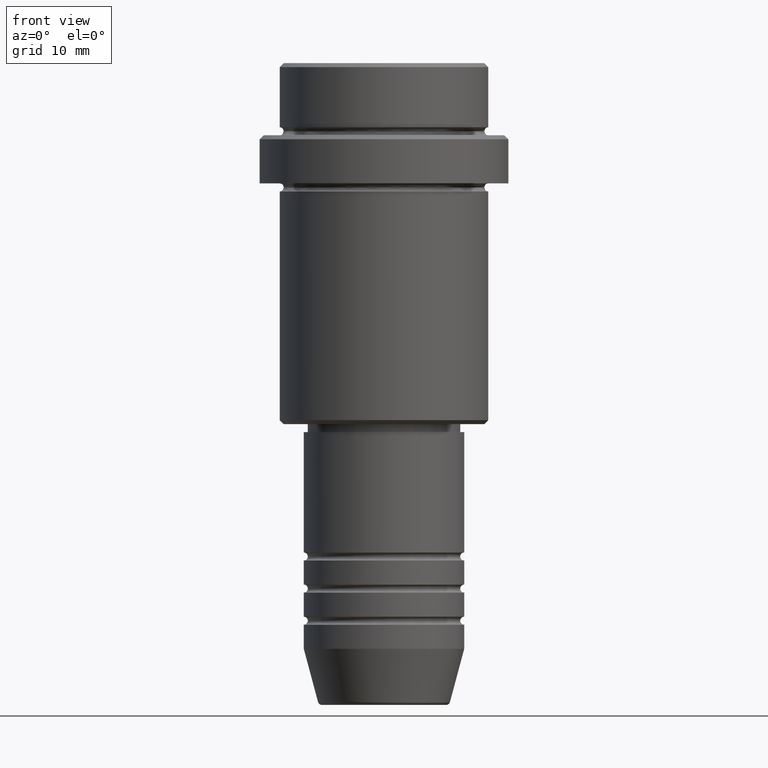
[diagram: clean part render]
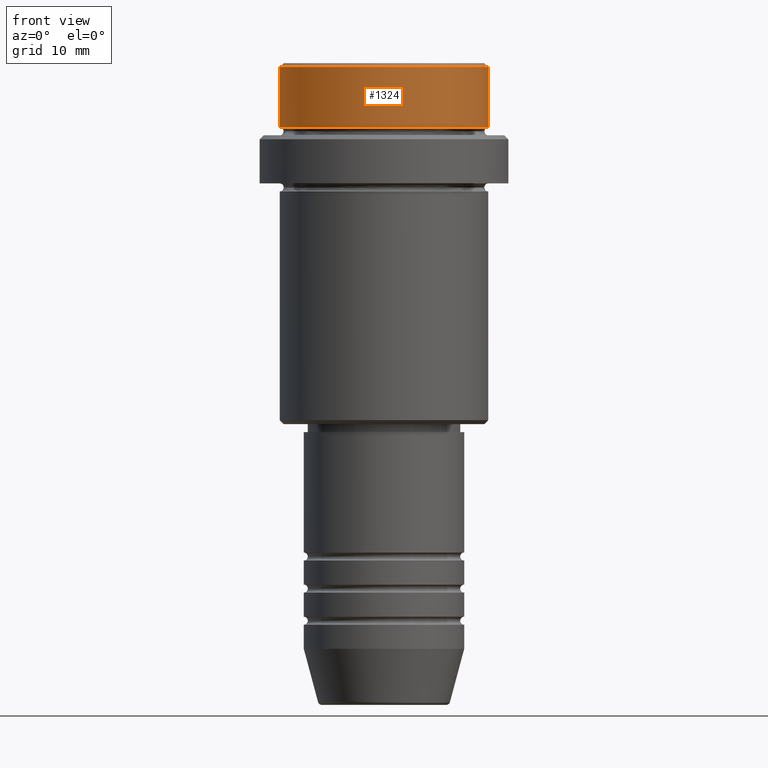
[diagram: same view with one face highlighted and labeled with its STEP entity id]
A machine part, front view. The second image highlights one B-rep face of the part: STEP entity #1324.
In plain terms, the highlighted cylindrical surface (partial cylindrical patch) has radius 13 mm, axis along (-0, -0, 1).
Its self-contained STEP definition (entity closure, byte-faithful):
#25 = CARTESIAN_POINT ( 'NONE',  ( 12.99999999999999822, 0.000000000000000000, -0.4999999999999761302 ) ) ;
#89 = LINE ( 'NONE', #788, #575 ) ;
#104 = VERTEX_POINT ( 'NONE', #362 ) ;
#118 = CARTESIAN_POINT ( 'NONE',  ( 0.000000000000000000, 0.000000000000000000, -7.999999999999998224 ) ) ;
#120 = CIRCLE ( 'NONE', #1408, 12.99999999999999822 ) ;
#129 = ORIENTED_EDGE ( 'NONE', *, *, #1106, .T. ) ;
#190 = EDGE_CURVE ( 'NONE', #104, #401, #210, .T. ) ;
#191 = VECTOR ( 'NONE', #1305, 1000.000000000000000 ) ;
#210 = LINE ( 'NONE', #443, #191 ) ;
#240 = DIRECTION ( 'NONE',  ( 1.000000000000000000, 0.000000000000000000, 0.000000000000000000 ) ) ;
#288 = ORIENTED_EDGE ( 'NONE', *, *, #1176, .T. ) ;
#330 = DIRECTION ( 'NONE',  ( 1.000000000000000000, 0.000000000000000000, 0.000000000000000000 ) ) ;
#337 = DIRECTION ( 'NONE',  ( -0.000000000000000000, -0.000000000000000000, 1.000000000000000000 ) ) ;
#354 = AXIS2_PLACEMENT_3D ( 'NONE', #118, #337, #240 ) ;
#362 = CARTESIAN_POINT ( 'NONE',  ( 12.99999999999999822, 0.000000000000000000, -7.999999999999998224 ) ) ;
#381 = CYLINDRICAL_SURFACE ( 'NONE', #1279, 12.99999999999999822 ) ;
#401 = VERTEX_POINT ( 'NONE', #25 ) ;
#443 = CARTESIAN_POINT ( 'NONE',  ( 12.99999999999999822, 0.000000000000000000, 0.000000000000000000 ) ) ;
#463 = CARTESIAN_POINT ( 'NONE',  ( -12.99999999999999822, 1.592040838891558898E-15, -7.999999999999998224 ) ) ;
#481 = ORIENTED_EDGE ( 'NONE', *, *, #688, .F. ) ;
#524 = CARTESIAN_POINT ( 'NONE',  ( 0.000000000000000000, 0.000000000000000000, 0.000000000000000000 ) ) ;
#575 = VECTOR ( 'NONE', #1415, 1000.000000000000000 ) ;
#600 = VERTEX_POINT ( 'NONE', #463 ) ;
#688 = EDGE_CURVE ( 'NONE', #600, #718, #89, .T. ) ;
#718 = VERTEX_POINT ( 'NONE', #1319 ) ;
#719 = FACE_OUTER_BOUND ( 'NONE', #1037, .T. ) ;
#780 = CIRCLE ( 'NONE', #354, 12.99999999999999822 ) ;
#788 = CARTESIAN_POINT ( 'NONE',  ( -12.99999999999999822, 1.592040838891558898E-15, 0.000000000000000000 ) ) ;
#1037 = EDGE_LOOP ( 'NONE', ( #481, #288, #1061, #129 ) ) ;
#1061 = ORIENTED_EDGE ( 'NONE', *, *, #190, .T. ) ;
#1086 = DIRECTION ( 'NONE',  ( 0.000000000000000000, 0.000000000000000000, -1.000000000000000000 ) ) ;
#1106 = EDGE_CURVE ( 'NONE', #401, #718, #120, .T. ) ;
#1176 = EDGE_CURVE ( 'NONE', #600, #104, #780, .T. ) ;
#1279 = AXIS2_PLACEMENT_3D ( 'NONE', #524, #1374, #1283 ) ;
#1283 = DIRECTION ( 'NONE',  ( 1.000000000000000000, 0.000000000000000000, 0.000000000000000000 ) ) ;
#1305 = DIRECTION ( 'NONE',  ( -0.000000000000000000, -0.000000000000000000, 1.000000000000000000 ) ) ;
#1319 = CARTESIAN_POINT ( 'NONE',  ( -12.99999999999999822, 1.592040838891558898E-15, -0.4999999999999761302 ) ) ;
#1324 = ADVANCED_FACE ( 'NONE', ( #719 ), #381, .T. ) ;
#1374 = DIRECTION ( 'NONE',  ( -0.000000000000000000, -0.000000000000000000, 1.000000000000000000 ) ) ;
#1408 = AXIS2_PLACEMENT_3D ( 'NONE', #1414, #1086, #330 ) ;
#1414 = CARTESIAN_POINT ( 'NONE',  ( 0.000000000000000000, 0.000000000000000000, -0.4999999999999761302 ) ) ;
#1415 = DIRECTION ( 'NONE',  ( -0.000000000000000000, -0.000000000000000000, 1.000000000000000000 ) ) ;